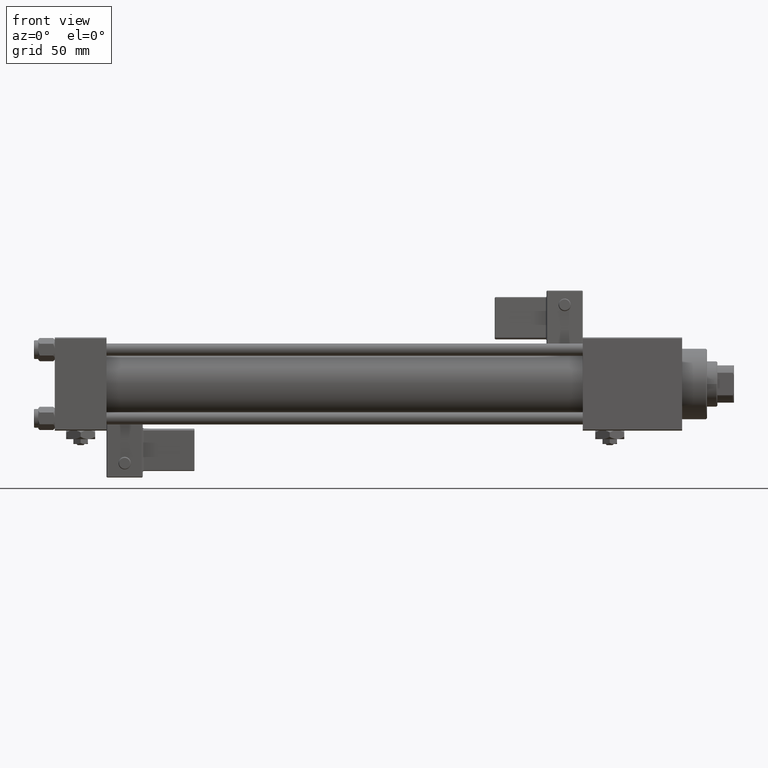
[diagram: clean part render]
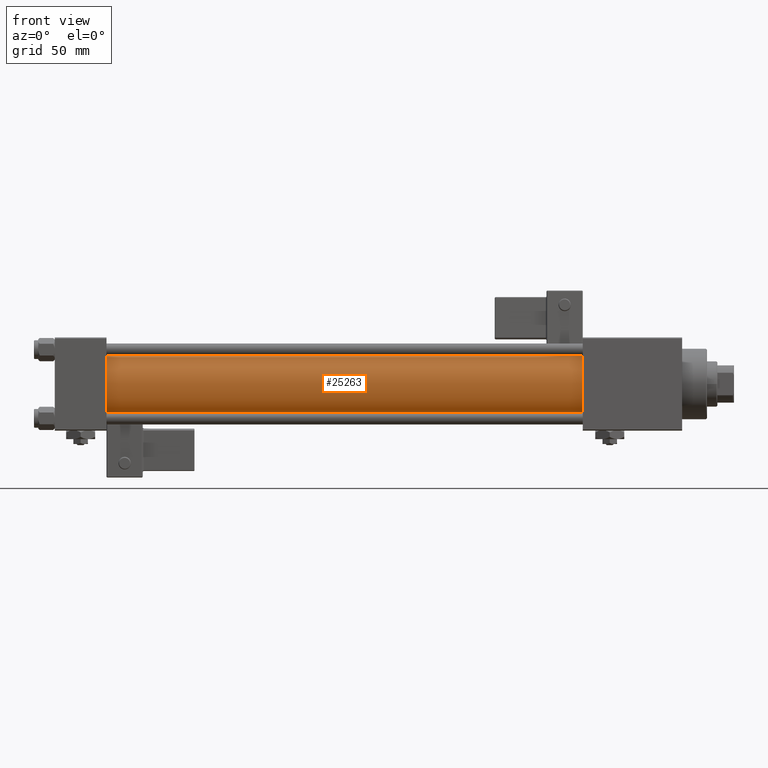
[diagram: same view with one face highlighted and labeled with its STEP entity id]
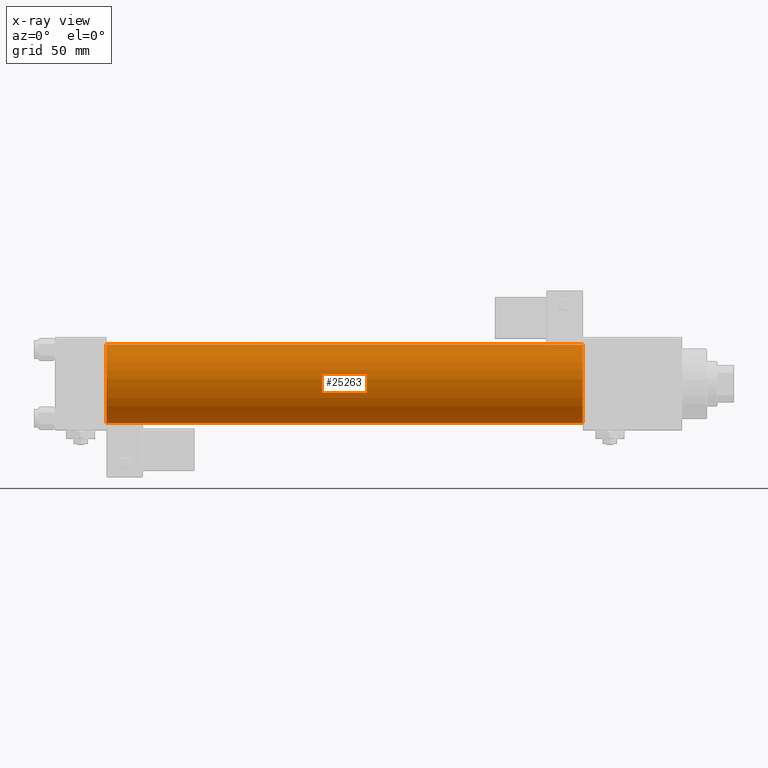
[diagram: x-ray of the same camera — body ghosted, the highlighted face saturated]
A machine part, front view. The second image highlights one B-rep face of the part: STEP entity #25263.
The next image is the same camera in x-ray: the body ghosted, the highlighted face saturated — about 0% of this face is hidden behind the body in this view.
In plain terms, the highlighted cylindrical surface (partial cylindrical patch) has radius 19 mm, axis along (-1, -0, -0).
Its self-contained STEP definition (entity closure, byte-faithful):
#575 = ORIENTED_EDGE ( 'NONE', *, *, #54860, .T. ) ;
#2133 = CIRCLE ( 'NONE', #32745, 19.00000000000000000 ) ;
#3936 = ORIENTED_EDGE ( 'NONE', *, *, #43925, .F. ) ;
#8787 = ORIENTED_EDGE ( 'NONE', *, *, #20466, .F. ) ;
#9099 = CARTESIAN_POINT ( 'NONE',  ( 255.0000000000000000, -2.752562955852396712E-16, -19.00000000000000000 ) ) ;
#10118 = EDGE_CURVE ( 'NONE', #49613, #26355, #2133, .T. ) ;
#11280 = ORIENTED_EDGE ( 'NONE', *, *, #10118, .T. ) ;
#14139 = CIRCLE ( 'NONE', #45646, 19.00000000000000000 ) ;
#15614 = CARTESIAN_POINT ( 'NONE',  ( 24.99999999999999289, -2.602085213965210642E-15, 0.000000000000000000 ) ) ;
#16508 = CARTESIAN_POINT ( 'NONE',  ( 255.0000000000000000, -2.602085213965210642E-15, 19.00000000000000000 ) ) ;
#19164 = CARTESIAN_POINT ( 'NONE',  ( 255.0000000000000000, -2.602085213965210642E-15, 19.00000000000000000 ) ) ;
#19179 = EDGE_LOOP ( 'NONE', ( #3936, #8787, #575, #11280 ) ) ;
#20466 = EDGE_CURVE ( 'NONE', #22723, #50791, #14139, .T. ) ;
#20997 = CARTESIAN_POINT ( 'NONE',  ( 255.0000000000000000, -2.602085213965210642E-15, 0.000000000000000000 ) ) ;
#22670 = VECTOR ( 'NONE', #49326, 1000.000000000000000 ) ;
#22723 = VERTEX_POINT ( 'NONE', #16508 ) ;
#22740 = CYLINDRICAL_SURFACE ( 'NONE', #43881, 19.00000000000000000 ) ;
#25263 = ADVANCED_FACE ( 'NONE', ( #27550 ), #22740, .T. ) ;
#26355 = VERTEX_POINT ( 'NONE', #27205 ) ;
#27205 = CARTESIAN_POINT ( 'NONE',  ( 24.99999999999999289, -2.752562955852396712E-16, -19.00000000000000000 ) ) ;
#27550 = FACE_OUTER_BOUND ( 'NONE', #19179, .T. ) ;
#30642 = CARTESIAN_POINT ( 'NONE',  ( 255.0000000000000000, -2.602085213965210642E-15, 0.000000000000000000 ) ) ;
#32131 = LINE ( 'NONE', #19164, #22670 ) ;
#32745 = AXIS2_PLACEMENT_3D ( 'NONE', #15614, #53714, #32815 ) ;
#32815 = DIRECTION ( 'NONE',  ( 0.000000000000000000, 0.000000000000000000, 1.000000000000000000 ) ) ;
#35426 = DIRECTION ( 'NONE',  ( -1.000000000000000000, -0.000000000000000000, -0.000000000000000000 ) ) ;
#38185 = DIRECTION ( 'NONE',  ( 1.000000000000000000, 0.000000000000000000, 0.000000000000000000 ) ) ;
#43881 = AXIS2_PLACEMENT_3D ( 'NONE', #30642, #35426, #52645 ) ;
#43925 = EDGE_CURVE ( 'NONE', #50791, #26355, #51101, .T. ) ;
#45646 = AXIS2_PLACEMENT_3D ( 'NONE', #20997, #38185, #55412 ) ;
#47599 = CARTESIAN_POINT ( 'NONE',  ( 255.0000000000000000, -2.752562955852396712E-16, -19.00000000000000000 ) ) ;
#48997 = VECTOR ( 'NONE', #51667, 1000.000000000000000 ) ;
#49326 = DIRECTION ( 'NONE',  ( -1.000000000000000000, -0.000000000000000000, -0.000000000000000000 ) ) ;
#49613 = VERTEX_POINT ( 'NONE', #51512 ) ;
#50791 = VERTEX_POINT ( 'NONE', #47599 ) ;
#51101 = LINE ( 'NONE', #9099, #48997 ) ;
#51512 = CARTESIAN_POINT ( 'NONE',  ( 24.99999999999999289, -2.602085213965210642E-15, 19.00000000000000000 ) ) ;
#51667 = DIRECTION ( 'NONE',  ( -1.000000000000000000, -0.000000000000000000, -0.000000000000000000 ) ) ;
#52645 = DIRECTION ( 'NONE',  ( 0.000000000000000000, 0.000000000000000000, 1.000000000000000000 ) ) ;
#53714 = DIRECTION ( 'NONE',  ( 1.000000000000000000, -0.000000000000000000, 0.000000000000000000 ) ) ;
#54860 = EDGE_CURVE ( 'NONE', #22723, #49613, #32131, .T. ) ;
#55412 = DIRECTION ( 'NONE',  ( 0.000000000000000000, 0.000000000000000000, -1.000000000000000000 ) ) ;